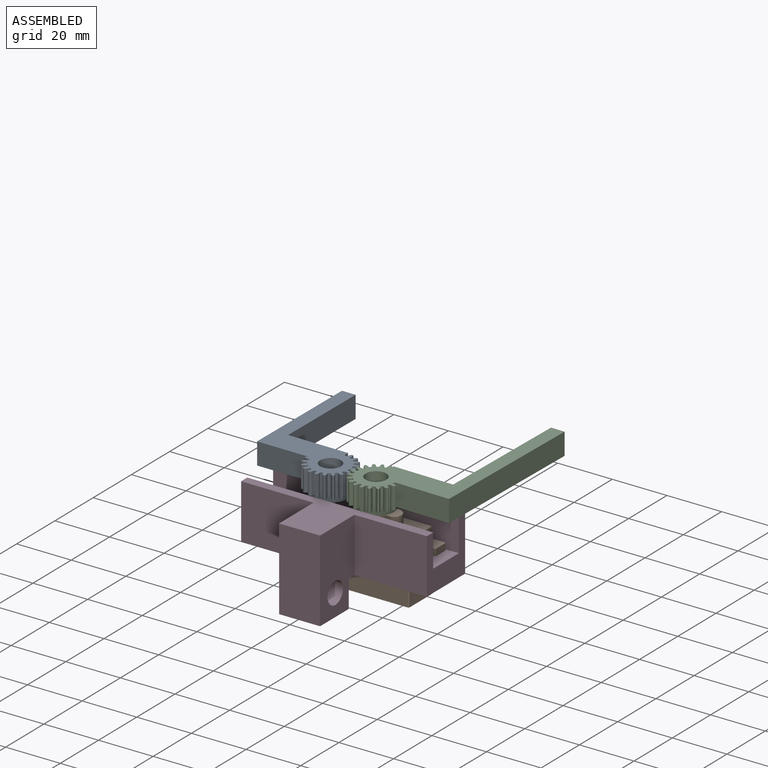
[diagram: assembled view]
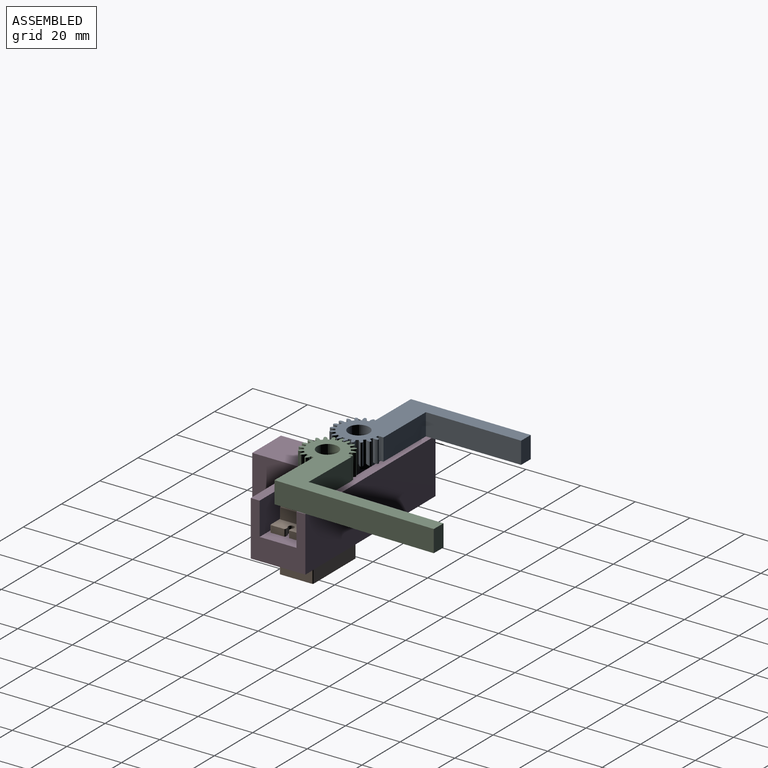
[diagram: assembled view, second angle]
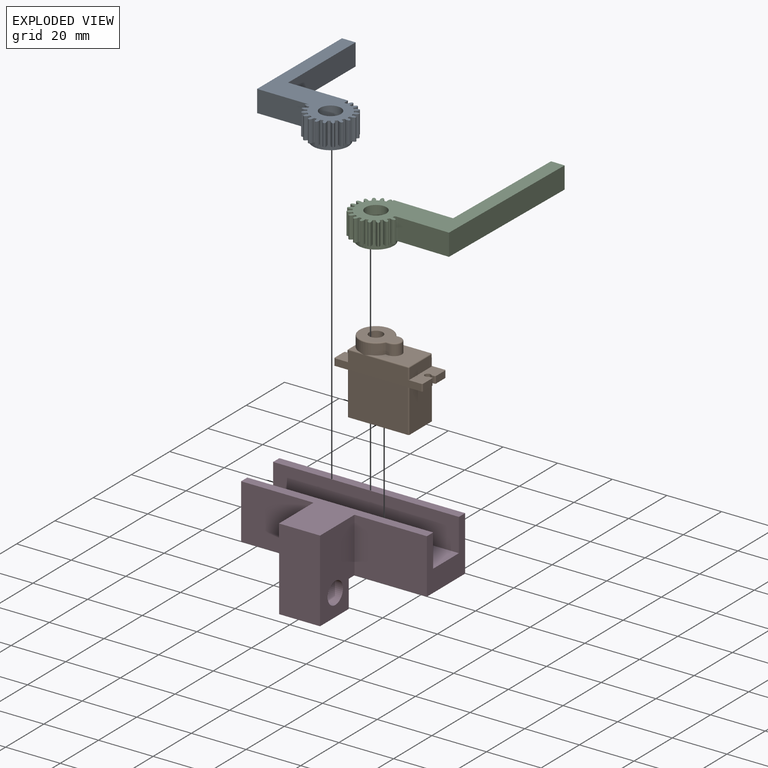
[diagram: exploded view]
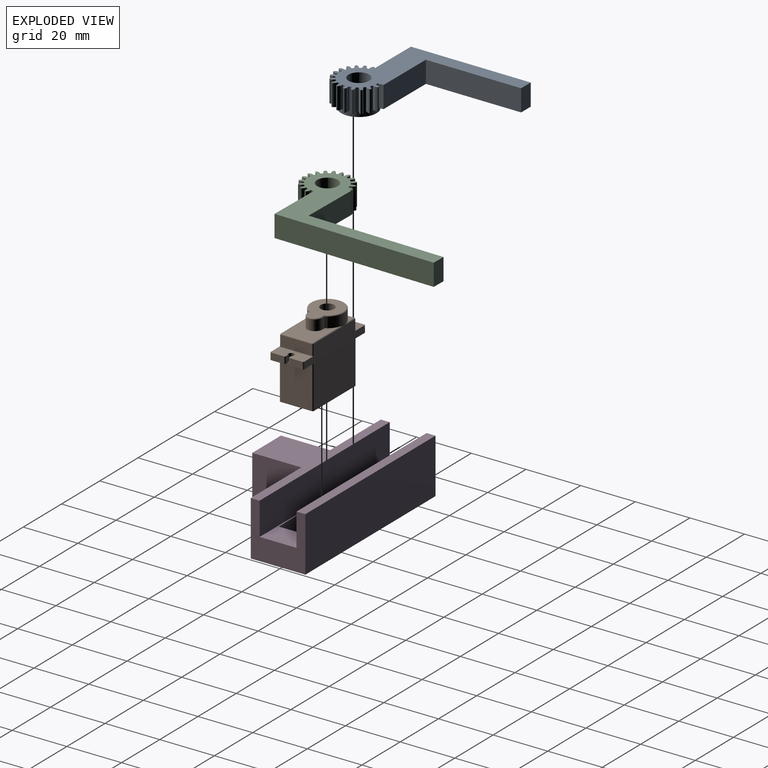
[diagram: exploded view, second angle]
ASSEMBLY  parts=4 mates=7
PART A: 132 faces, bbox 42.4x10x48.9 mm
  f0: extruded ~8x0.13mm, area 1.1mm2, adj f112,f120,f121,f129
  f1: cylinder r=7.02mm len=8mm, axis (0,1,0), area 5.2mm2, adj f2,f11,f120,f121
  f2: cylinder r=0.2mm len=8mm, axis (0,1,0), area 2.5mm2, adj f1,f8,f120,f121
  f3: cylinder r=0.2mm len=8mm, axis (0,1,0), area 2.5mm2, adj f4,f114,f120,f121
  f4: plane 8x0.6mm, normal (-0.95,0,0.31), area 5.1mm2, adj f3,f5,f120,f121
  f5: extruded ~8x0.79mm, area 8.8mm2, adj f4,f6,f120,f121
  f6: cylinder r=8.85mm len=8mm, axis (0,1,0), area 4.2mm2, adj f5,f7,f120,f121
  f7: extruded ~8x1.09mm, area 8.8mm2, adj f6,f8,f120,f121
  f8: plane 8x0.56mm, normal (0.89,0,-0.46), area 5.1mm2, adj f2,f7,f120,f121
  f9: cylinder r=7.02mm len=8mm, axis (0,1,0), area 5.2mm2, adj f10,f19,f120,f121
  f10: cylinder r=0.2mm len=8mm, axis (0,1,0), area 2.5mm2, adj f9,f16,f120,f121
  f11: cylinder r=0.2mm len=8mm, axis (0,1,0), area 2.5mm2, adj f1,f12,f120,f121
  f12: plane 8x0.51mm, normal (-0.81,0,0.58), area 5.1mm2, adj f11,f13,f120,f121
  f13: extruded ~8x0.95mm, area 8.8mm2, adj f12,f14,f120,f121
  f14: cylinder r=8.85mm len=8mm, axis (0,1,0), area 4.2mm2, adj f13,f15,f120,f121
  f15: extruded ~8x1.02mm, area 8.8mm2, adj f14,f16,f120,f121
  f16: plane 8x0.45mm, normal (0.7,0,-0.71), area 5.1mm2, adj f10,f15,f120,f121
  f17: cylinder r=7.02mm len=8mm, axis (0,1,0), area 5.2mm2, adj f18,f27,f120,f121
  f18: cylinder r=0.2mm len=8mm, axis (0,1,0), area 2.5mm2, adj f17,f24,f120,f121
  f19: cylinder r=0.2mm len=8mm, axis (0,1,0), area 2.5mm2, adj f9,f20,f120,f121
  f20: plane 8x0.51mm, normal (-0.59,0,0.81), area 5.1mm2, adj f19,f21,f120,f121
  f21: extruded ~8x1.07mm, area 8.8mm2, adj f20,f22,f120,f121
  f22: cylinder r=8.85mm len=8mm, axis (0,1,0), area 4.2mm2, adj f21,f23,f120,f121
  f23: extruded ~8x0.86mm, area 8.8mm2, adj f22,f24,f120,f121
  f24: plane 8x0.56mm, normal (0.45,0,-0.89), area 5.1mm2, adj f18,f23,f120,f121
  f25: cylinder r=7.02mm len=8mm, axis (0,1,0), area 5.2mm2, adj f26,f35,f120,f121
  f26: cylinder r=0.2mm len=8mm, axis (0,1,0), area 2.5mm2, adj f25,f32,f120,f121
  f27: cylinder r=0.2mm len=8mm, axis (0,1,0), area 2.5mm2, adj f17,f28,f120,f121
  f28: plane 8x0.6mm, normal (-0.31,0,0.95), area 5.1mm2, adj f27,f29,f120,f121
  f29: extruded ~8x1.08mm, area 8.8mm2, adj f28,f30,f120,f121
  f30: cylinder r=8.85mm len=8mm, axis (0,1,0), area 4.2mm2, adj f29,f31,f120,f121
  f31: extruded ~8x0.9mm, area 8.8mm2, adj f30,f32,f120,f121
  f32: plane 8x0.63mm, normal (0.15,0,-0.99), area 5.1mm2, adj f26,f31,f120,f121
  f33: cylinder r=7.02mm len=8mm, axis (0,1,0), area 5.2mm2, adj f34,f43,f120,f121
  f34: cylinder r=0.2mm len=8mm, axis (0,1,0), area 2.5mm2, adj f33,f40,f120,f121
  f35: cylinder r=0.2mm len=8mm, axis (0,1,0), area 2.5mm2, adj f25,f36,f120,f121
  f36: plane 8x0.63mm, normal (0,0,1), area 5.1mm2, adj f35,f37,f120,f121
  f37: extruded ~8x0.98mm, area 8.8mm2, adj f36,f38,f120,f121
  f38: cylinder r=8.85mm len=8mm, axis (0,1,0), area 4.2mm2, adj f37,f39,f120,f121
  f39: extruded ~8x1.04mm, area 8.8mm2, adj f38,f40,f120,f121
  f40: plane 8x0.62mm, normal (-0.16,0,-0.99), area 5.1mm2, adj f34,f39,f120,f121
  f41: cylinder r=7.02mm len=8mm, axis (0,1,0), area 5.2mm2, adj f42,f51,f120,f121
  f42: cylinder r=0.2mm len=8mm, axis (0,1,0), area 2.5mm2, adj f41,f48,f120,f121
  f43: cylinder r=0.2mm len=8mm, axis (0,1,0), area 2.5mm2, adj f33,f44,f120,f121
  f44: plane 8x0.6mm, normal (0.31,0,0.95), area 5.1mm2, adj f43,f45,f120,f121
  f45: extruded ~8x0.79mm, area 8.8mm2, adj f44,f46,f120,f121
  f46: cylinder r=8.85mm len=8mm, axis (0,1,0), area 4.2mm2, adj f45,f47,f120,f121
  f47: extruded ~8x1.09mm, area 8.8mm2, adj f46,f48,f120,f121
  f48: plane 8x0.56mm, normal (-0.46,0,-0.89), area 5.1mm2, adj f42,f47,f120,f121
  f49: cylinder r=7.02mm len=8mm, axis (0,1,0), area 5.2mm2, adj f50,f59,f120,f121
  f50: cylinder r=0.2mm len=8mm, axis (0,1,0), area 2.5mm2, adj f49,f56,f120,f121
  f51: cylinder r=0.2mm len=8mm, axis (0,1,0), area 2.5mm2, adj f41,f52,f120,f121
  f52: plane 8x0.51mm, normal (0.58,0,0.81), area 5.1mm2, adj f51,f53,f120,f121
  f53: extruded ~8x0.95mm, area 8.8mm2, adj f52,f54,f120,f121
  f54: cylinder r=8.85mm len=8mm, axis (0,1,0), area 4.2mm2, adj f53,f55,f120,f121
  f55: extruded ~8x1.02mm, area 8.8mm2, adj f54,f56,f120,f121
  f56: plane 8x0.45mm, normal (-0.71,0,-0.7), area 5.1mm2, adj f50,f55,f120,f121
  f57: cylinder r=7.02mm len=8mm, axis (0,1,0), area 5.2mm2, adj f58,f67,f120,f121
  f58: cylinder r=0.2mm len=8mm, axis (0,1,0), area 2.5mm2, adj f57,f64,f120,f121
  f59: cylinder r=0.2mm len=8mm, axis (0,1,0), area 2.5mm2, adj f49,f60,f120,f121
  f60: plane 8x0.51mm, normal (0.81,0,0.59), area 5.1mm2, adj f59,f61,f120,f121
  f61: extruded ~8x1.07mm, area 8.8mm2, adj f60,f62,f120,f121
  f62: cylinder r=8.85mm len=8mm, axis (0,1,0), area 4.2mm2, adj f61,f63,f120,f121
  f63: extruded ~8x0.86mm, area 8.8mm2, adj f62,f64,f120,f121
  f64: plane 8x0.56mm, normal (-0.89,0,-0.45), area 5.1mm2, adj f58,f63,f120,f121
  f65: cylinder r=7.02mm len=8mm, axis (0,1,0), area 5.2mm2, adj f66,f75,f120,f121
  f66: cylinder r=0.2mm len=8mm, axis (0,1,0), area 2.5mm2, adj f65,f72,f120,f121
  f67: cylinder r=0.2mm len=8mm, axis (0,1,0), area 2.5mm2, adj f57,f68,f120,f121
  f68: plane 8x0.6mm, normal (0.95,0,0.31), area 5.1mm2, adj f67,f69,f120,f121
  f69: extruded ~8x1.08mm, area 8.8mm2, adj f68,f70,f120,f121
  f70: cylinder r=8.85mm len=8mm, axis (0,1,0), area 4.2mm2, adj f69,f71,f120,f121
  f71: extruded ~8x0.9mm, area 8.8mm2, adj f70,f72,f120,f121
  f72: plane 8x0.63mm, normal (-0.99,0,-0.15), area 5.1mm2, adj f66,f71,f120,f121
  f73: cylinder r=7.02mm len=8mm, axis (0,1,0), area 5.2mm2, adj f74,f83,f120,f121
  f74: cylinder r=0.2mm len=8mm, axis (0,1,0), area 2.5mm2, adj f73,f80,f120,f121
  f75: cylinder r=0.2mm len=8mm, axis (0,1,0), area 2.5mm2, adj f65,f76,f120,f121
  f76: plane 8x0.63mm, normal (1,0,0), area 5.1mm2, adj f75,f77,f120,f121
  f77: extruded ~8x0.98mm, area 8.8mm2, adj f76,f78,f120,f121
  f78: cylinder r=8.85mm len=8mm, axis (0,1,0), area 4.2mm2, adj f77,f79,f120,f121
  f79: extruded ~8x1.04mm, area 8.8mm2, adj f78,f80,f120,f121
  f80: plane 8x0.62mm, normal (-0.99,0,0.16), area 5.1mm2, adj f74,f79,f120,f121
  f81: cylinder r=7.02mm len=8mm, axis (0,1,0), area 5.2mm2, adj f82,f91,f120,f121
  f82: cylinder r=0.2mm len=8mm, axis (0,1,0), area 2.5mm2, adj f81,f88,f120,f121
  f83: cylinder r=0.2mm len=8mm, axis (0,1,0), area 2.5mm2, adj f73,f84,f120,f121
  f84: plane 8x0.6mm, normal (0.95,0,-0.31), area 5.1mm2, adj f83,f85,f120,f121
  f85: extruded ~8x0.79mm, area 8.8mm2, adj f84,f86,f120,f121
  f86: cylinder r=8.85mm len=8mm, axis (0,1,0), area 4.2mm2, adj f85,f87,f120,f121
  f87: extruded ~8x1.09mm, area 8.8mm2, adj f86,f88,f120,f121
  f88: plane 8x0.56mm, normal (-0.89,0,0.46), area 5.1mm2, adj f82,f87,f120,f121
  f89: cylinder r=7.02mm len=8mm, axis (0,1,0), area 5.2mm2, adj f90,f99,f120,f121
  f90: cylinder r=0.2mm len=8mm, axis (0,1,0), area 2.5mm2, adj f89,f96,f120,f121
  f91: cylinder r=0.2mm len=8mm, axis (0,1,0), area 2.5mm2, adj f81,f92,f120,f121
  f92: plane 8x0.51mm, normal (0.81,0,-0.58), area 5.1mm2, adj f91,f93,f120,f121
  f93: extruded ~8x0.95mm, area 8.8mm2, adj f92,f94,f120,f121
  f94: cylinder r=8.85mm len=8mm, axis (0,1,0), area 4.2mm2, adj f93,f95,f120,f121
  f95: extruded ~8x1.02mm, area 8.8mm2, adj f94,f96,f120,f121
  f96: plane 8x0.45mm, normal (-0.7,0,0.71), area 5.1mm2, adj f90,f95,f120,f121
  f97: cylinder r=7.02mm len=8mm, axis (0,1,0), area 5.2mm2, adj f98,f105,f120,f121
  f98: cylinder r=0.2mm len=8mm, axis (0,1,0), area 2.5mm2, adj f97,f104,f120,f121
  f99: cylinder r=0.2mm len=8mm, axis (0,1,0), area 2.5mm2, adj f89,f100,f120,f121
  f100: plane 8x0.51mm, normal (0.59,0,-0.81), area 5.1mm2, adj f99,f101,f120,f121
  f101: extruded ~8x1.07mm, area 8.8mm2, adj f100,f102,f120,f121
  f102: cylinder r=8.85mm len=8mm, axis (0,1,0), area 4.2mm2, adj f101,f103,f120,f121
  f103: extruded ~8x0.86mm, area 8.8mm2, adj f102,f104,f120,f121
  f104: plane 8x0.56mm, normal (-0.45,0,0.89), area 5.1mm2, adj f98,f103,f120,f121
  f105: cylinder r=0.2mm len=8mm, axis (0,1,0), area 2.5mm2, adj f97,f106,f120,f121
  f106: plane 8x0.6mm, normal (0.31,0,-0.95), area 5.1mm2, adj f105,f107,f120,f121
  f107: extruded ~8x1.08mm, area 8.8mm2, adj f106,f108,f120,f121
  f108: cylinder r=8.85mm len=8mm, axis (0,1,0), area 4.2mm2, adj f107,f109,f120,f121
  f109: extruded ~8x0.77mm, area 7.7mm2, adj f108,f120,f121,f124
  f110: cylinder r=7.02mm len=8mm, axis (0,1,0), area 5.2mm2, adj f111,f120,f121,f122
  f111: cylinder r=0.2mm len=8mm, axis (0,1,0), area 2.5mm2, adj f110,f112,f120,f121
  f112: plane 8x0.63mm, normal (0.99,0,0.15), area 5.1mm2, adj f0,f111,f120,f121
  f113: plane 8x0.62mm, normal (0.99,0,-0.16), area 5.1mm2, adj f118,f120,f121,f123
  f114: cylinder r=7.02mm len=8mm, axis (0,1,0), area 5.2mm2, adj f3,f120,f121,f123
  f115: plane 8x0.63mm, normal (-1,0,0), area 5.1mm2, adj f116,f120,f121,f122
  f116: extruded ~8x0.98mm, area 8.8mm2, adj f115,f117,f120,f121
  f117: cylinder r=8.85mm len=8mm, axis (0,1,0), area 4.2mm2, adj f116,f118,f120,f121
  f118: extruded ~8x1.04mm, area 8.8mm2, adj f113,f117,f120,f121
  f119: cylinder r=3.81mm len=10mm, axis (0,1,0), area 239.4mm2, adj f120,f131
  f120: plane 48.88x42.39mm, normal (0,-1,0), area 519.7mm2, adj f0,f1,f2,f3,f4,f5,f6,f7
  f121: plane 48.88x42.39mm, normal (0,1,0), area 432.6mm2, adj f0,f1,f2,f3,f4,f5,f6,f7
  f122: cylinder r=0.2mm len=8mm, axis (0,1,0), area 2.5mm2, adj f110,f115,f120,f121
  f123: cylinder r=0.2mm len=8mm, axis (0,1,0), area 2.5mm2, adj f113,f114,f120,f121
  f124: plane 18.78x8mm, normal (0.16,0,-0.99), area 152.1mm2, adj f109,f120,f121,f125
  f125: plane 43.49x8mm, normal (-0.99,0,-0.16), area 352.2mm2, adj f120,f121,f124,f126
  f126: plane 8x4.94mm, normal (-0.16,0,0.99), area 40mm2, adj f120,f121,f125,f127
  f127: plane 34.57x8mm, normal (0.99,0,0.16), area 280mm2, adj f120,f121,f126,f128
  f128: plane 21.73x8mm, normal (-0.16,0,0.99), area 176mm2, adj f120,f121,f127,f129
  f129: plane 8x1.03mm, normal (0.99,0,0.16), area 8.3mm2, adj f0,f120,f121,f128
  f130: cylinder r=6.5mm len=13mm, axis (0,-1,0), area 81.7mm2, adj f121,f131
  f131: plane 13x13mm, normal (0,1,0), area 87.1mm2, adj f119,f130
PART B: 64 faces, bbox 13.2x32.4x26.7 mm
  f0: plane 3.52x3.52mm, normal (0,0,1), area 4.4mm2, adj f4,f7,f57
  f1: plane 3.52x3.52mm, normal (0,0,1), area 4.4mm2, adj f5,f8,f57
  f2: plane 13.72x11.39mm, normal (0,0,1), area 107.7mm2, adj f3,f6,f47,f53,f54,f57,f58
  f3: cylinder r=0.4mm len=15.89mm, axis (0,1,0), area 9.3mm2, adj f2,f17,f45,f57
  f4: cylinder r=0.4mm len=5.69mm, axis (0,1,0), area 2.9mm2, adj f0,f17,f50,f57
  f5: cylinder r=0.4mm len=5.69mm, axis (0,1,0), area 2.9mm2, adj f1,f15,f51,f57
  f6: cylinder r=0.4mm len=15.89mm, axis (0,1,0), area 9.3mm2, adj f2,f15,f49,f57
  f7: cylinder r=0.4mm len=5.69mm, axis (-1,0,0), area 2.9mm2, adj f0,f16,f50,f57
  f8: cylinder r=0.4mm len=5.69mm, axis (-1,0,0), area 2.9mm2, adj f1,f16,f51,f57
  f9: plane 4.73x2.5mm, normal (0,1,0.01), area 11.8mm2, adj f11,f12,f32,f36
  f10: plane 4.73x2.5mm, normal (0,1,0.01), area 11.8mm2, adj f11,f12,f33,f37
  f11: plane 12.3x5.35mm, normal (0,0,-1), area 55.4mm2, adj f9,f10,f15,f17,f22,f29,f30,f31
  f12: plane 12.26x5.35mm, normal (0,0,1), area 55.2mm2, adj f9,f10,f15,f16,f17,f29,f30,f31
  f13: plane 4.73x2.5mm, normal (0,-1,0.01), area 11.8mm2, adj f14,f25,f34,f38
  f14: plane 12.26x5.35mm, normal (0,0,1), area 55.2mm2, adj f13,f15,f17,f18,f24,f26,f27,f28
  f15: plane 31.6x6.4mm, normal (1,0,0.01), area 163.4mm2, adj f5,f6,f11,f12,f14,f23,f25,f36
  f16: plane 11.46x3.9mm, normal (0,1,0.01), area 44.6mm2, adj f7,f8,f12,f48,f52
  f17: plane 31.6x6.4mm, normal (-1,0,0.01), area 163.4mm2, adj f3,f4,f11,f12,f14,f21,f25,f37
  f18: plane 11.46x3.9mm, normal (0,-1,0.01), area 44.6mm2, adj f14,f44,f46,f47
  f19: plane 22.5x12.3mm, normal (0,0,-1), area 276.6mm2, adj f20,f21,f22,f23,f40,f41,f42,f43
  f20: plane 15.7x11.5mm, normal (0,-1,0), area 180.5mm2, adj f19,f25,f42,f43
  f21: plane 21.7x15.7mm, normal (-1,0,0), area 340.7mm2, adj f17,f19,f41,f42
  f22: plane 15.7x11.5mm, normal (0,1,0), area 180.5mm2, adj f11,f19,f40,f41
  f23: plane 21.7x15.7mm, normal (1,0,0), area 340.7mm2, adj f15,f19,f40,f43
  f24: plane 4.73x2.5mm, normal (0,-1,0.01), area 11.8mm2, adj f14,f25,f35,f39
  f25: plane 12.3x5.35mm, normal (0,0,-1), area 55.4mm2, adj f13,f15,f17,f20,f24,f26,f27,f28
  f26: cylinder r=1.1mm len=2.5mm, axis (0,0,1), area 14mm2, adj f14,f25,f27,f28
  f27: plane 2.5x1.04mm, normal (1,0,0), area 2.6mm2, adj f14,f25,f26,f34
  f28: plane 2.5x1.04mm, normal (-1,0,0), area 2.6mm2, adj f14,f25,f26,f35
  f29: plane 2.5x1.04mm, normal (-1,0,0), area 2.6mm2, adj f11,f12,f31,f32
  f30: plane 2.5x1.04mm, normal (1,0,0), area 2.6mm2, adj f11,f12,f31,f33
  f31: cylinder r=1.1mm len=2.5mm, axis (0,0,1), area 14mm2, adj f11,f12,f29,f30
  f32: cylinder r=0.4mm len=2.51mm, axis (0,0.01,-1), area 1.6mm2, adj f9,f11,f12,f29
  f33: cylinder r=0.4mm len=2.51mm, axis (0,-0.01,1), area 1.6mm2, adj f10,f11,f12,f30
  f34: cylinder r=0.4mm len=2.51mm, axis (0,0.01,1), area 1.6mm2, adj f13,f14,f25,f27
  f35: cylinder r=0.4mm len=2.51mm, axis (0,-0.01,-1), area 1.6mm2, adj f14,f24,f25,f28
  f36: cylinder r=0.4mm len=2.5mm, axis (0.01,0.01,-1), area 1.6mm2, adj f9,f11,f12,f15
  f37: cylinder r=0.4mm len=2.5mm, axis (-0.01,0.01,-1), area 1.6mm2, adj f10,f11,f12,f17
  f38: cylinder r=0.4mm len=2.5mm, axis (-0.01,-0.01,-1), area 1.6mm2, adj f13,f14,f17,f25
  f39: cylinder r=0.4mm len=2.5mm, axis (0.01,-0.01,-1), area 1.6mm2, adj f14,f15,f24,f25
  f40: cylinder r=0.4mm len=15.7mm, axis (0,0,-1), area 9.9mm2, adj f11,f19,f22,f23
  f41: cylinder r=0.4mm len=15.7mm, axis (0,0,1), area 9.9mm2, adj f11,f19,f21,f22
  f42: cylinder r=0.4mm len=15.7mm, axis (0,0,-1), area 9.9mm2, adj f19,f20,f21,f25
  f43: cylinder r=0.4mm len=15.7mm, axis (0,0,1), area 9.9mm2, adj f19,f20,f23,f25
  f44: cylinder r=0.4mm len=3.91mm, axis (-0.01,-0.01,-1), area 2.5mm2, adj f14,f17,f18,f45
  f45: sphere r=0.4mm, area 0.2mm2, adj f3,f44,f47
  f46: cylinder r=0.4mm len=3.91mm, axis (0.01,-0.01,-1), area 2.5mm2, adj f14,f15,f18,f49
  f47: cylinder r=0.4mm len=11.39mm, axis (-1,0,0), area 7.1mm2, adj f2,f18,f45,f49
  f48: cylinder r=0.4mm len=3.91mm, axis (-0.01,0.01,-1), area 2.5mm2, adj f12,f16,f17,f50
  f49: sphere r=0.4mm, area 0.2mm2, adj f6,f46,f47
  f50: sphere r=0.4mm, area 0.2mm2, adj f4,f7,f48
  f51: sphere r=0.4mm, area 0.2mm2, adj f5,f8,f52
  f52: cylinder r=0.4mm len=3.91mm, axis (0.01,0.01,-1), area 2.5mm2, adj f12,f15,f16,f51
  f53: plane 3.8x1.22mm, normal (-1,0,0), area 4.6mm2, adj f2,f54,f57,f61
  f54: cylinder r=2.75mm len=5.5mm, axis (0,0,-1), area 32.8mm2, adj f2,f53,f58,f63
  f55: plane 14.7x11.39mm, normal (0,0,1), area 96.2mm2, adj f56,f60,f61,f62,f63
  f56: cylinder r=2.5mm len=5mm, axis (0,0,-1), area 66mm2, adj f55,f59
  f57: cylinder r=6.09mm len=12.19mm, axis (0,0,-1), area 125.9mm2, adj f0,f1,f2,f3,f4,f5,f6,f7
  f58: plane 3.8x1.22mm, normal (1,0,0), area 4.6mm2, adj f2,f54,f57,f62
  f59: plane 5x5mm, normal (0,0,1), area 19.6mm2, adj f56
  f60: torus R=5.69mm, axis (0,0,1), area 20.1mm2, adj f55,f57,f61,f62
  f61: cylinder r=0.4mm len=1.47mm, axis (0,1,0), area 0.8mm2, adj f53,f55,f60,f63
  f62: cylinder r=0.4mm len=1.47mm, axis (0,-1,0), area 0.8mm2, adj f55,f58,f60,f63
  f63: torus R=2.35mm, axis (0,0,1), area 5.1mm2, adj f54,f55,f61,f62
PART C: 132 faces, bbox 35.9x10x67.8 mm
  f0: extruded ~8x0.13mm, area 1.1mm2, adj f114,f121,f122,f125
  f1: cylinder r=7.02mm len=8mm, axis (0,1,0), area 5.2mm2, adj f2,f11,f121,f122
  f2: cylinder r=0.2mm len=8mm, axis (0,1,0), area 2.5mm2, adj f1,f8,f121,f122
  f3: cylinder r=0.2mm len=8mm, axis (0,1,0), area 2.5mm2, adj f4,f116,f121,f122
  f4: plane 8x0.6mm, normal (0.95,0,0.31), area 5.1mm2, adj f3,f5,f121,f122
  f5: extruded ~8x0.79mm, area 8.8mm2, adj f4,f6,f121,f122
  f6: cylinder r=8.85mm len=8mm, axis (0,1,0), area 4.2mm2, adj f5,f7,f121,f122
  f7: extruded ~8x1.09mm, area 8.8mm2, adj f6,f8,f121,f122
  f8: plane 8x0.56mm, normal (-0.89,0,-0.46), area 5.1mm2, adj f2,f7,f121,f122
  f9: cylinder r=7.02mm len=8mm, axis (0,1,0), area 5.2mm2, adj f10,f19,f121,f122
  f10: cylinder r=0.2mm len=8mm, axis (0,1,0), area 2.5mm2, adj f9,f16,f121,f122
  f11: cylinder r=0.2mm len=8mm, axis (0,1,0), area 2.5mm2, adj f1,f12,f121,f122
  f12: plane 8x0.51mm, normal (0.81,0,0.58), area 5.1mm2, adj f11,f13,f121,f122
  f13: extruded ~8x0.95mm, area 8.8mm2, adj f12,f14,f121,f122
  f14: cylinder r=8.85mm len=8mm, axis (0,1,0), area 4.2mm2, adj f13,f15,f121,f122
  f15: extruded ~8x1.02mm, area 8.8mm2, adj f14,f16,f121,f122
  f16: plane 8x0.45mm, normal (-0.7,0,-0.71), area 5.1mm2, adj f10,f15,f121,f122
  f17: cylinder r=7.02mm len=8mm, axis (0,1,0), area 5.2mm2, adj f18,f27,f121,f122
  f18: cylinder r=0.2mm len=8mm, axis (0,1,0), area 2.5mm2, adj f17,f24,f121,f122
  f19: cylinder r=0.2mm len=8mm, axis (0,1,0), area 2.5mm2, adj f9,f20,f121,f122
  f20: plane 8x0.51mm, normal (0.59,0,0.81), area 5.1mm2, adj f19,f21,f121,f122
  f21: extruded ~8x1.07mm, area 8.8mm2, adj f20,f22,f121,f122
  f22: cylinder r=8.85mm len=8mm, axis (0,1,0), area 4.2mm2, adj f21,f23,f121,f122
  f23: extruded ~8x0.86mm, area 8.8mm2, adj f22,f24,f121,f122
  f24: plane 8x0.56mm, normal (-0.45,0,-0.89), area 5.1mm2, adj f18,f23,f121,f122
  f25: cylinder r=7.02mm len=8mm, axis (0,1,0), area 5.2mm2, adj f26,f35,f121,f122
  f26: cylinder r=0.2mm len=8mm, axis (0,1,0), area 2.5mm2, adj f25,f32,f121,f122
  f27: cylinder r=0.2mm len=8mm, axis (0,1,0), area 2.5mm2, adj f17,f28,f121,f122
  f28: plane 8x0.6mm, normal (0.31,0,0.95), area 5.1mm2, adj f27,f29,f121,f122
  f29: extruded ~8x1.08mm, area 8.8mm2, adj f28,f30,f121,f122
  f30: cylinder r=8.85mm len=8mm, axis (0,1,0), area 4.2mm2, adj f29,f31,f121,f122
  f31: extruded ~8x0.9mm, area 8.8mm2, adj f30,f32,f121,f122
  f32: plane 8x0.63mm, normal (-0.15,0,-0.99), area 5.1mm2, adj f26,f31,f121,f122
  f33: cylinder r=7.02mm len=8mm, axis (0,1,0), area 5.2mm2, adj f34,f43,f121,f122
  f34: cylinder r=0.2mm len=8mm, axis (0,1,0), area 2.5mm2, adj f33,f40,f121,f122
  f35: cylinder r=0.2mm len=8mm, axis (0,1,0), area 2.5mm2, adj f25,f36,f121,f122
  f36: plane 8x0.63mm, normal (0,0,1), area 5.1mm2, adj f35,f37,f121,f122
  f37: extruded ~8x0.98mm, area 8.8mm2, adj f36,f38,f121,f122
  f38: cylinder r=8.85mm len=8mm, axis (0,1,0), area 4.2mm2, adj f37,f39,f121,f122
  f39: extruded ~8x1.04mm, area 8.8mm2, adj f38,f40,f121,f122
  f40: plane 8x0.62mm, normal (0.16,0,-0.99), area 5.1mm2, adj f34,f39,f121,f122
  f41: cylinder r=7.02mm len=8mm, axis (0,1,0), area 5.2mm2, adj f42,f51,f121,f122
  f42: cylinder r=0.2mm len=8mm, axis (0,1,0), area 2.5mm2, adj f41,f48,f121,f122
  f43: cylinder r=0.2mm len=8mm, axis (0,1,0), area 2.5mm2, adj f33,f44,f121,f122
  f44: plane 8x0.6mm, normal (-0.31,0,0.95), area 5.1mm2, adj f43,f45,f121,f122
  f45: extruded ~8x0.79mm, area 8.8mm2, adj f44,f46,f121,f122
  f46: cylinder r=8.85mm len=8mm, axis (0,1,0), area 4.2mm2, adj f45,f47,f121,f122
  f47: extruded ~8x1.09mm, area 8.8mm2, adj f46,f48,f121,f122
  f48: plane 8x0.56mm, normal (0.46,0,-0.89), area 5.1mm2, adj f42,f47,f121,f122
  f49: cylinder r=7.02mm len=8mm, axis (0,1,0), area 5.2mm2, adj f50,f59,f121,f122
  f50: cylinder r=0.2mm len=8mm, axis (0,1,0), area 2.5mm2, adj f49,f56,f121,f122
  f51: cylinder r=0.2mm len=8mm, axis (0,1,0), area 2.5mm2, adj f41,f52,f121,f122
  f52: plane 8x0.51mm, normal (-0.58,0,0.81), area 5.1mm2, adj f51,f53,f121,f122
  f53: extruded ~8x0.95mm, area 8.8mm2, adj f52,f54,f121,f122
  f54: cylinder r=8.85mm len=8mm, axis (0,1,0), area 4.2mm2, adj f53,f55,f121,f122
  f55: extruded ~8x1.02mm, area 8.8mm2, adj f54,f56,f121,f122
  f56: plane 8x0.45mm, normal (0.71,0,-0.7), area 5.1mm2, adj f50,f55,f121,f122
  f57: cylinder r=7.02mm len=8mm, axis (0,1,0), area 5.2mm2, adj f58,f67,f121,f122
  f58: cylinder r=0.2mm len=8mm, axis (0,1,0), area 2.5mm2, adj f57,f64,f121,f122
  f59: cylinder r=0.2mm len=8mm, axis (0,1,0), area 2.5mm2, adj f49,f60,f121,f122
  f60: plane 8x0.51mm, normal (-0.81,0,0.59), area 5.1mm2, adj f59,f61,f121,f122
  f61: extruded ~8x1.07mm, area 8.8mm2, adj f60,f62,f121,f122
  f62: cylinder r=8.85mm len=8mm, axis (0,1,0), area 4.2mm2, adj f61,f63,f121,f122
  f63: extruded ~8x0.86mm, area 8.8mm2, adj f62,f64,f121,f122
  f64: plane 8x0.56mm, normal (0.89,0,-0.45), area 5.1mm2, adj f58,f63,f121,f122
  f65: cylinder r=7.02mm len=8mm, axis (0,1,0), area 5.2mm2, adj f66,f75,f121,f122
  f66: cylinder r=0.2mm len=8mm, axis (0,1,0), area 2.5mm2, adj f65,f72,f121,f122
  f67: cylinder r=0.2mm len=8mm, axis (0,1,0), area 2.5mm2, adj f57,f68,f121,f122
  f68: plane 8x0.6mm, normal (-0.95,0,0.31), area 5.1mm2, adj f67,f69,f121,f122
  f69: extruded ~8x1.08mm, area 8.8mm2, adj f68,f70,f121,f122
  f70: cylinder r=8.85mm len=8mm, axis (0,1,0), area 4.2mm2, adj f69,f71,f121,f122
  f71: extruded ~8x0.9mm, area 8.8mm2, adj f70,f72,f121,f122
  f72: plane 8x0.63mm, normal (0.99,0,-0.15), area 5.1mm2, adj f66,f71,f121,f122
  f73: cylinder r=7.02mm len=8mm, axis (0,1,0), area 5.2mm2, adj f74,f83,f121,f122
  f74: cylinder r=0.2mm len=8mm, axis (0,1,0), area 2.5mm2, adj f73,f80,f121,f122
  f75: cylinder r=0.2mm len=8mm, axis (0,1,0), area 2.5mm2, adj f65,f76,f121,f122
  f76: plane 8x0.63mm, normal (-1,0,0), area 5.1mm2, adj f75,f77,f121,f122
  f77: extruded ~8x0.98mm, area 8.8mm2, adj f76,f78,f121,f122
  f78: cylinder r=8.85mm len=8mm, axis (0,1,0), area 4.2mm2, adj f77,f79,f121,f122
  f79: extruded ~8x1.04mm, area 8.8mm2, adj f78,f80,f121,f122
  f80: plane 8x0.62mm, normal (0.99,0,0.16), area 5.1mm2, adj f74,f79,f121,f122
  f81: cylinder r=7.02mm len=8mm, axis (0,1,0), area 5.2mm2, adj f82,f91,f121,f122
  f82: cylinder r=0.2mm len=8mm, axis (0,1,0), area 2.5mm2, adj f81,f88,f121,f122
  f83: cylinder r=0.2mm len=8mm, axis (0,1,0), area 2.5mm2, adj f73,f84,f121,f122
  f84: plane 8x0.6mm, normal (-0.95,0,-0.31), area 5.1mm2, adj f83,f85,f121,f122
  f85: extruded ~8x0.79mm, area 8.8mm2, adj f84,f86,f121,f122
  f86: cylinder r=8.85mm len=8mm, axis (0,1,0), area 4.2mm2, adj f85,f87,f121,f122
  f87: extruded ~8x1.09mm, area 8.8mm2, adj f86,f88,f121,f122
  f88: plane 8x0.56mm, normal (0.89,0,0.46), area 5.1mm2, adj f82,f87,f121,f122
  f89: cylinder r=7.02mm len=8mm, axis (0,1,0), area 5.2mm2, adj f90,f99,f121,f122
  f90: cylinder r=0.2mm len=8mm, axis (0,1,0), area 2.5mm2, adj f89,f96,f121,f122
  f91: cylinder r=0.2mm len=8mm, axis (0,1,0), area 2.5mm2, adj f81,f92,f121,f122
  f92: plane 8x0.51mm, normal (-0.81,0,-0.58), area 5.1mm2, adj f91,f93,f121,f122
  f93: extruded ~8x0.95mm, area 8.8mm2, adj f92,f94,f121,f122
  f94: cylinder r=8.85mm len=8mm, axis (0,1,0), area 4.2mm2, adj f93,f95,f121,f122
  f95: extruded ~8x1.02mm, area 8.8mm2, adj f94,f96,f121,f122
  f96: plane 8x0.45mm, normal (0.7,0,0.71), area 5.1mm2, adj f90,f95,f121,f122
  f97: cylinder r=7.02mm len=8mm, axis (0,1,0), area 5.2mm2, adj f98,f107,f121,f122
  f98: cylinder r=0.2mm len=8mm, axis (0,1,0), area 2.5mm2, adj f97,f104,f121,f122
  f99: cylinder r=0.2mm len=8mm, axis (0,1,0), area 2.5mm2, adj f89,f100,f121,f122
  f100: plane 8x0.51mm, normal (-0.59,0,-0.81), area 5.1mm2, adj f99,f101,f121,f122
  f101: extruded ~8x1.07mm, area 8.8mm2, adj f100,f102,f121,f122
  f102: cylinder r=8.85mm len=8mm, axis (0,1,0), area 4.2mm2, adj f101,f103,f121,f122
  f103: extruded ~8x0.86mm, area 8.8mm2, adj f102,f104,f121,f122
  f104: plane 8x0.56mm, normal (0.45,0,0.89), area 5.1mm2, adj f98,f103,f121,f122
  f105: cylinder r=7.02mm len=8mm, axis (0,1,0), area 5.2mm2, adj f106,f113,f121,f122
  f106: cylinder r=0.2mm len=8mm, axis (0,1,0), area 2.5mm2, adj f105,f112,f121,f122
  f107: cylinder r=0.2mm len=8mm, axis (0,1,0), area 2.5mm2, adj f97,f108,f121,f122
  f108: plane 8x0.6mm, normal (-0.31,0,-0.95), area 5.1mm2, adj f107,f109,f121,f122
  f109: extruded ~8x1.08mm, area 8.8mm2, adj f108,f110,f121,f122
  f110: cylinder r=8.85mm len=8mm, axis (0,1,0), area 4.2mm2, adj f109,f111,f121,f122
  f111: extruded ~8x0.9mm, area 8.8mm2, adj f110,f112,f121,f122
  f112: plane 8x0.63mm, normal (0.15,0,0.99), area 5.1mm2, adj f106,f111,f121,f122
  f113: cylinder r=0.2mm len=8mm, axis (0,1,0), area 2.5mm2, adj f105,f114,f121,f122
  f114: plane 8x0.63mm, normal (0,0,-1), area 5.1mm2, adj f0,f113,f121,f122
  f115: plane 8x0.62mm, normal (-0.99,0,-0.16), area 5.1mm2, adj f119,f121,f122,f123
  f116: cylinder r=7.02mm len=8mm, axis (0,1,0), area 5.2mm2, adj f3,f121,f122,f123
  f117: extruded ~8x0.96mm, area 8.6mm2, adj f118,f121,f122,f124
  f118: cylinder r=8.85mm len=8mm, axis (0,1,0), area 4.2mm2, adj f117,f119,f121,f122
  f119: extruded ~8x1.04mm, area 8.8mm2, adj f115,f118,f121,f122
  f120: cylinder r=3.81mm len=10mm, axis (0,1,0), area 239.4mm2, adj f121,f131
  f121: plane 67.84x35.87mm, normal (0,-1,0), area 594.2mm2, adj f0,f1,f2,f3,f4,f5,f6,f7
  f122: plane 67.84x35.87mm, normal (0,1,0), area 507.1mm2, adj f0,f1,f2,f3,f4,f5,f6,f7
  f123: cylinder r=0.2mm len=8mm, axis (0,1,0), area 2.5mm2, adj f115,f116,f121,f122
  f124: plane 8x1.13mm, normal (-1,0,0), area 9mm2, adj f117,f121,f122,f127
  f125: plane 19.04x8mm, normal (0,0,-1), area 152.4mm2, adj f0,f121,f122,f126
  f126: plane 59x8mm, normal (1,0,0), area 472mm2, adj f121,f122,f125,f128
  f127: plane 22x8mm, normal (0,0,1), area 176mm2, adj f121,f122,f124,f129
  f128: plane 8x5mm, normal (0,0,1), area 40mm2, adj f121,f122,f126,f129
  f129: plane 50x8mm, normal (-1,0,0), area 400mm2, adj f121,f122,f127,f128
  f130: cylinder r=6.5mm len=13mm, axis (0,-1,0), area 81.7mm2, adj f122,f131
  f131: plane 13x13mm, normal (0,1,0), area 87.1mm2, adj f120,f130
PART D: 22 faces, bbox 68x38x30 mm
  f0: plane 12.5x8mm, normal (1,0,0), area 100mm2, adj f1,f3,f7,f20
  f1: plane 21.5x8mm, normal (0,-1,0), area 172mm2, adj f0,f2,f7,f20
  f2: plane 12.5x8mm, normal (-1,0,0), area 100mm2, adj f1,f3,f7,f20
  f3: plane 21.5x8mm, normal (0,1,0), area 172mm2, adj f0,f2,f7,f20
  f4: plane 68x3.25mm, normal (0,0,1), area 221mm2, adj f5,f6,f11,f19
  f5: plane 20x20mm, normal (1,0,0), area 238mm2, adj f4,f7,f10,f11,f14,f18,f19,f20
  f6: plane 20x20mm, normal (-1,0,0), area 238mm2, adj f4,f7,f11,f12,f14,f18,f19,f20
  f7: plane 68x23mm, normal (0,0,-1), area 1057.7mm2, adj f0,f1,f2,f3,f5,f6,f9,f10
  f8: plane 30x15mm, normal (0,-1,0), area 450mm2, adj f9,f13,f14,f16
  f9: plane 30x18mm, normal (1,0,0), area 459.7mm2, adj f7,f8,f10,f14,f15,f16,f17
  f10: plane 26.5x20mm, normal (0,-1,0), area 530mm2, adj f5,f7,f9,f14
  f11: plane 68x20mm, normal (0,1,0), area 1360mm2, adj f4,f5,f6,f7
  f12: plane 26.5x20mm, normal (0,-1,0), area 530mm2, adj f6,f7,f13,f14
  f13: plane 30x18mm, normal (-1,0,0), area 459.7mm2, adj f7,f8,f12,f14,f15,f16,f17
  f14: plane 68x21.25mm, normal (0,0,1), area 491mm2, adj f5,f6,f8,f9,f10,f12,f13,f18
  f15: plane 15x10mm, normal (0,1,0), area 150mm2, adj f7,f9,f13,f16
  f16: plane 15x15mm, normal (0,0,-1), area 225mm2, adj f8,f9,f13,f15
  f17: cylinder r=4mm len=15mm, axis (1,0,0), area 377mm2, adj f9,f13
  f18: plane 68x12mm, normal (0,1,0), area 816mm2, adj f5,f6,f14,f20
  f19: plane 68x12mm, normal (0,-1,0), area 816mm2, adj f4,f5,f6,f20
  f20: plane 68x13.5mm, normal (0,0,1), area 570.7mm2, adj f0,f1,f2,f3,f5,f6,f18,f19
  f21: cylinder r=5mm len=10mm, axis (0,0,1), area 251.3mm2, adj f7,f20
PLACE A rot(axis=(-0.99,0.08,-0.08),90.4deg) t=(-6.22,29.48,24.4)mm
PLACE B rot(axis=(0,0,1),90deg) t=(-4.31,32.81,11.4)mm
PLACE C rot(axis=(-1,0.01,-0.01),90deg) t=(-9.41,32.81,24.4)mm
PLACE D t=(-17.71,4.71,3.4)mm fixed
MATE planar B.f11 <-> D.f20  axis (0,0,-1) through (-20.51,29.43,11.4)mm
MATE cylindrical C.f130 <-> B.f56  axis (0,0,1) through (-9.41,32.81,23.4)mm
MATE planar B.f20 <-> D.f2  axis (1,0,0) through (6.94,32.81,3.55)mm
MATE planar C.f121 <-> A.f120  axis (0,0,1) through (6.43,48.42,32.4)mm
MATE planar B.f55 <-> C.f1  axis (0,0,1) through (-4.22,35.16,22.4)mm
MATE cylindrical D.f21 <-> A.f1  axis (0,0,1) through (-25.96,32.71,11.4)mm
MATE planar B.f23 <-> D.f1  axis (0,1,0) through (-4.31,38.96,3.55)mm
